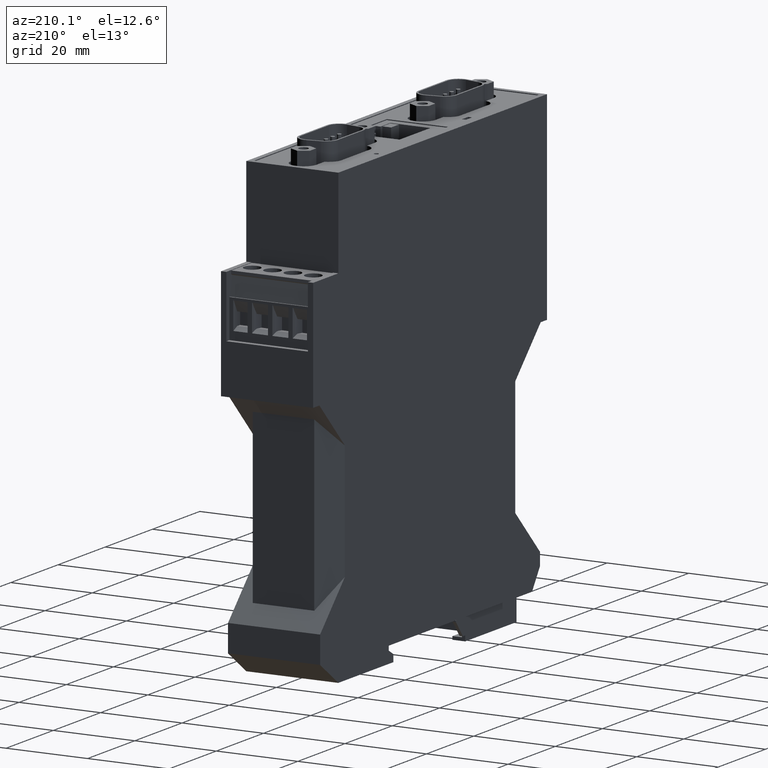
[diagram: clean part render]
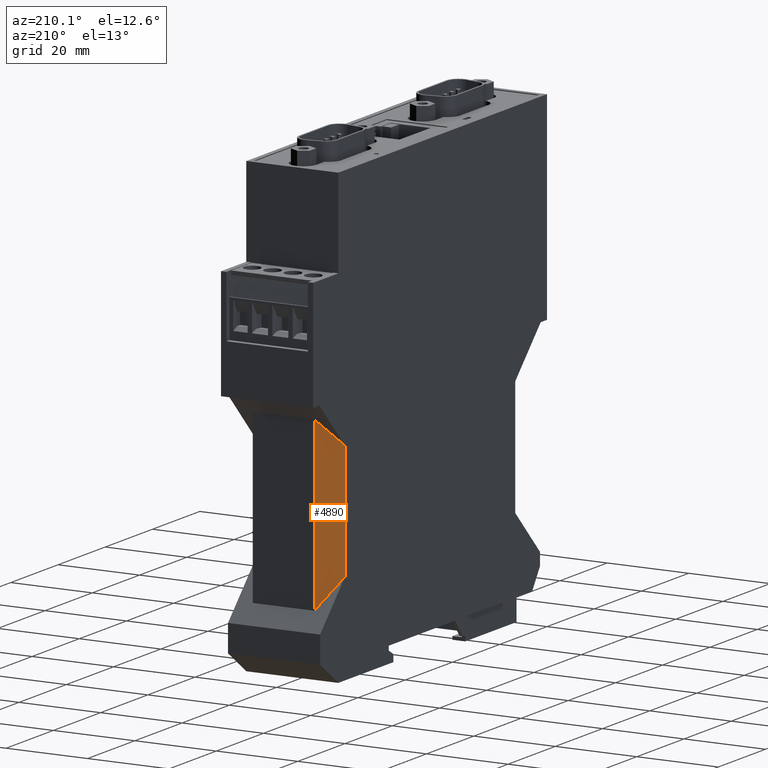
[diagram: same view with one face highlighted and labeled with its STEP entity id]
A machine part, auxiliary view. The second image highlights one B-rep face of the part: STEP entity #4890.
In plain terms, the highlighted planar face has unit normal (0.866, -0.5, 0).
Its self-contained STEP definition (entity closure, byte-faithful):
#680=CARTESIAN_POINT('',(18.55000000009,18.4999999999987,0.));
#690=VERTEX_POINT('',#680);
#720=CARTESIAN_POINT('',(18.5500000000901,24.,0.));
#730=DIRECTION('',(4.E-15,1.,0.));
#740=VECTOR('',#730,1.);
#750=LINE('',#720,#740);
#760=CARTESIAN_POINT('',(18.5500000000902,47.1000000000011,0.));
#770=VERTEX_POINT('',#760);
#780=EDGE_CURVE('',#690,#770,#750,.T.);
#4590=CARTESIAN_POINT('',(20.840414750099,17.5174029733583,
1.32237157247356));
#4600=DIRECTION('',(-0.499999999999999,2.E-15,0.866025403784439));
#4610=DIRECTION('',(0.866025403784439,0.,0.499999999999999));
#4620=AXIS2_PLACEMENT_3D('',#4590,#4600,#4610);
#4630=PLANE('',#4620);
#4640=CARTESIAN_POINT('',(24.,13.0500000000897,3.14655896703148));
#4650=DIRECTION('',(-0.654653670708029,0.654653670707908,
-0.377964473009258));
#4660=VECTOR('',#4650,1.);
#4670=LINE('',#4640,#4660);
#4680=CARTESIAN_POINT('',(25.0500000000874,12.0000000000026,
3.75277674973103));
#4690=VERTEX_POINT('',#4680);
#4700=EDGE_CURVE('',#4690,#690,#4670,.T.);
#4710=ORIENTED_EDGE('',*,*,#4700,.T.);
#4720=CARTESIAN_POINT('',(25.0500000000873,24.,3.75277674973095));
#4730=DIRECTION('',(-6.60000000000277E-15,1.,-6.11991285341162E-15));
#4740=VECTOR('',#4730,1.);
#4750=LINE('',#4720,#4740);
#4760=CARTESIAN_POINT('',(25.0500000000871,53.599999999998,
3.75277674973077));
#4770=VERTEX_POINT('',#4760);
#4780=EDGE_CURVE('',#4690,#4770,#4750,.T.);
#4790=ORIENTED_EDGE('',*,*,#4780,.F.);
#4800=CARTESIAN_POINT('',(24.,52.5499999999109,3.14655896703138));
#4810=DIRECTION('',(0.65465367070798,0.654653670707975,0.377964473009226
));
#4820=VECTOR('',#4810,1.);
#4830=LINE('',#4800,#4820);
#4840=EDGE_CURVE('',#770,#4770,#4830,.T.);
#4850=ORIENTED_EDGE('',*,*,#4840,.T.);
#4860=ORIENTED_EDGE('',*,*,#780,.T.);
#4870=EDGE_LOOP('',(#4860,#4850,#4790,#4710));
#4880=FACE_OUTER_BOUND('',#4870,.T.);
#4890=ADVANCED_FACE('',(#4880),#4630,.F.);